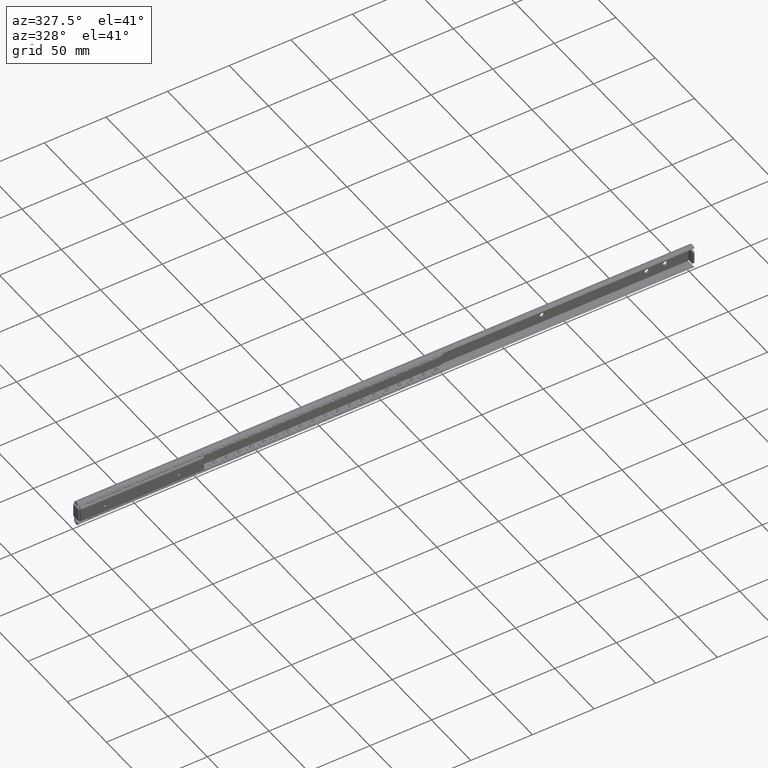
[diagram: clean part render]
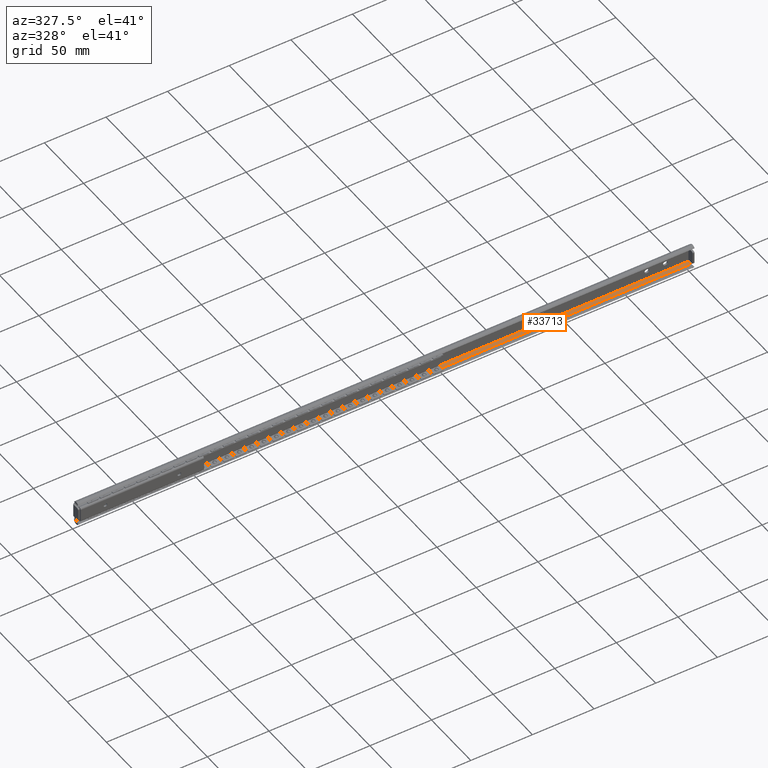
[diagram: same view with one face highlighted and labeled with its STEP entity id]
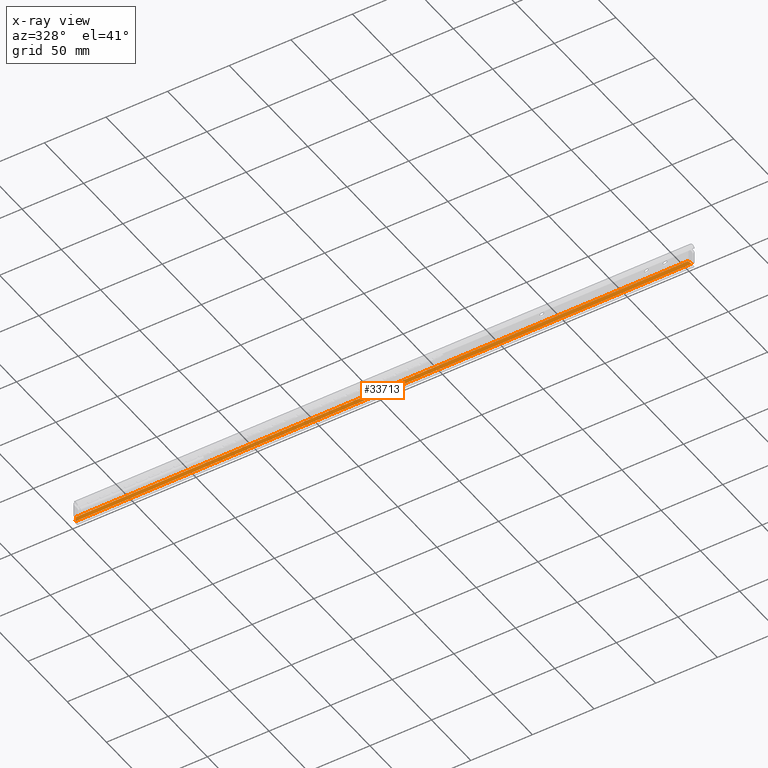
[diagram: x-ray of the same camera — body ghosted, the highlighted face saturated]
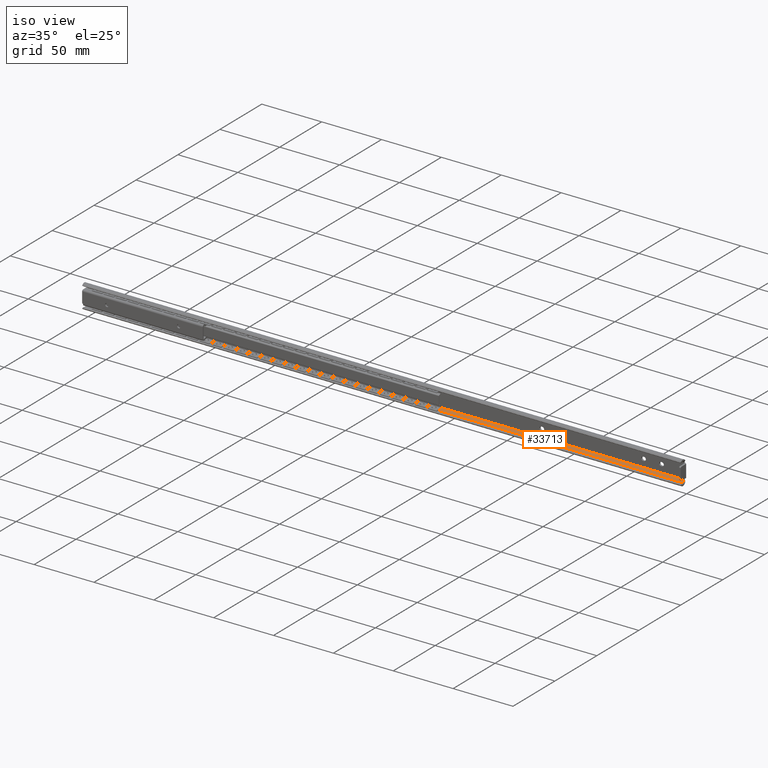
[diagram: same view with one face highlighted and labeled with its STEP entity id]
A machine part, auxiliary view. The second image highlights one B-rep face of the part: STEP entity #33713.
The next image is the same camera in x-ray: the body ghosted, the highlighted face saturated — about 0% of this face is hidden behind the body in this view.
A second angle (iso view) of the same face is appended — the face is thin or edge-on in the first view.
In plain terms, the highlighted face is a freeform B-spline surface patch.
Its self-contained STEP definition (entity closure, byte-faithful):
#32422=CARTESIAN_POINT('',(498.692893000000030,-2.161378739668635,-7.007107000000000));
#32423=VERTEX_POINT('',#32422);
#32429=CARTESIAN_POINT('',(499.707107000000010,-3.253435910361090,-8.021319999999999));
#32430=VERTEX_POINT('',#32429);
#32431=CARTESIAN_POINT('',(499.707107000000010,-3.253435910361090,-8.021319999999999));
#32432=CARTESIAN_POINT('',(498.692893000000030,-2.161378739668635,-7.007107000000000));
#32433=QUASI_UNIFORM_CURVE('',1,(#32431,#32432),.UNSPECIFIED.,.F.,.U.);
#32434=EDGE_CURVE('',#32430,#32423,#32433,.T.);
#32466=CARTESIAN_POINT('',(499.833379019755000,-3.419692415967285,-8.175724730600940));
#32467=VERTEX_POINT('',#32466);
#32468=CARTESIAN_POINT('',(499.833379019755000,-3.419692415967285,-8.175724730600940));
#32469=CARTESIAN_POINT('',(499.777981085427140,-3.329750332501765,-8.092194566917994));
#32470=CARTESIAN_POINT('',(499.707107000000010,-3.253435910361090,-8.021319999999999));
#32478=(BOUNDED_CURVE()B_SPLINE_CURVE(2,(#32468,#32469,#32470),.UNSPECIFIED.,.F.,.U.)CURVE()GEOMETRIC_REPRESENTATION_ITEM()QUASI_UNIFORM_CURVE()RATIONAL_B_SPLINE_CURVE((1.0,0.995014394697268,1.0))REPRESENTATION_ITEM(''));
#32479=EDGE_CURVE('',#32467,#32430,#32478,.T.);
#32669=CARTESIAN_POINT('',(498.411066295917010,-1.559745300733950,-6.448358676184340));
#32670=VERTEX_POINT('',#32669);
#32684=CARTESIAN_POINT('',(498.411066295917010,-1.559745300733950,-6.448358676184340));
#32685=CARTESIAN_POINT('',(498.459941880377240,-1.910547672656901,-6.774155707893746));
#32686=CARTESIAN_POINT('',(498.692893000000030,-2.161378739667843,-7.007106999999591));
#32694=(BOUNDED_CURVE()B_SPLINE_CURVE(2,(#32684,#32685,#32686),.UNSPECIFIED.,.F.,.U.)CURVE()GEOMETRIC_REPRESENTATION_ITEM()QUASI_UNIFORM_CURVE()RATIONAL_B_SPLINE_CURVE((1.0,0.949786060121423,1.0))REPRESENTATION_ITEM(''));
#32695=EDGE_CURVE('',#32670,#32423,#32694,.T.);
#33374=CARTESIAN_POINT('',(0.292892999999993,-3.253435910361090,-8.021319999999999));
#33375=VERTEX_POINT('',#33374);
#33381=CARTESIAN_POINT('',(1.307106999999946,-2.161378739668320,-7.007107000000000));
#33382=VERTEX_POINT('',#33381);
#33383=CARTESIAN_POINT('',(1.307106999999946,-2.161378739668320,-7.007107000000000));
#33384=CARTESIAN_POINT('',(0.292892999999993,-3.253435910361090,-8.021319999999999));
#33385=QUASI_UNIFORM_CURVE('',1,(#33383,#33384),.UNSPECIFIED.,.F.,.U.);
#33386=EDGE_CURVE('',#33382,#33375,#33385,.T.);
#33457=CARTESIAN_POINT('',(1.588933704083245,-1.559745300733950,-6.448358676184340));
#33458=VERTEX_POINT('',#33457);
#33459=CARTESIAN_POINT('',(1.307106999999946,-2.161378739668320,-7.007107000000000));
#33460=CARTESIAN_POINT('',(1.540057991290967,-1.910547810839261,-6.774155836226173));
#33461=CARTESIAN_POINT('',(1.588933704083245,-1.559745300733950,-6.448358676184340));
#33469=(BOUNDED_CURVE()B_SPLINE_CURVE(2,(#33459,#33460,#33461),.UNSPECIFIED.,.F.,.U.)CURVE()GEOMETRIC_REPRESENTATION_ITEM()QUASI_UNIFORM_CURVE()RATIONAL_B_SPLINE_CURVE((1.0,0.949786111349295,1.0))REPRESENTATION_ITEM(''));
#33470=EDGE_CURVE('',#33382,#33458,#33469,.T.);
#33571=CARTESIAN_POINT('',(0.166620980244670,-3.419692415967285,-8.175724730600940));
#33572=VERTEX_POINT('',#33571);
#33606=CARTESIAN_POINT('',(0.292892999999993,-3.253435910361090,-8.021319999999999));
#33607=CARTESIAN_POINT('',(0.222019087324127,-3.329750052030010,-8.092194306438865));
#33608=CARTESIAN_POINT('',(0.166620980244670,-3.419692415967285,-8.175724730600940));
#33616=(BOUNDED_CURVE()B_SPLINE_CURVE(2,(#33606,#33607,#33608),.UNSPECIFIED.,.F.,.U.)CURVE()GEOMETRIC_REPRESENTATION_ITEM()QUASI_UNIFORM_CURVE()RATIONAL_B_SPLINE_CURVE((1.0,0.995014363835470,1.0))REPRESENTATION_ITEM(''));
#33617=EDGE_CURVE('',#33375,#33572,#33616,.T.);
#33686=CARTESIAN_POINT('',(498.411066295917010,-1.559745300733950,-6.448358676184340));
#33687=CARTESIAN_POINT('',(1.588933704083245,-1.559745300733950,-6.448358676184340));
#33688=QUASI_UNIFORM_CURVE('',1,(#33686,#33687),.UNSPECIFIED.,.F.,.U.);
#33689=EDGE_CURVE('',#32670,#33458,#33688,.T.);
#33694=CARTESIAN_POINT('',(-24.791732615377811,-1.466840570024961,-6.362076996487044));
#33695=CARTESIAN_POINT('',(-24.791732615377811,-3.512596635383844,-8.262007194280020));
#33696=CARTESIAN_POINT('',(524.791746017484230,-1.466840570024961,-6.362076996487044));
#33697=CARTESIAN_POINT('',(524.791746017484230,-3.512596635383844,-8.262007194280020));
#33698=B_SPLINE_SURFACE_WITH_KNOTS('',1,1,((#33694,#33696),(#33695,#33697)),.UNSPECIFIED.,.F.,.F.,.U.,(2,2),(2,2),(0.0,2.791926330589387),(0.0,549.583478632862010),.UNSPECIFIED.);
#33699=ORIENTED_EDGE('',*,*,#32695,.F.);
#33700=ORIENTED_EDGE('',*,*,#33689,.T.);
#33701=ORIENTED_EDGE('',*,*,#33470,.F.);
#33702=ORIENTED_EDGE('',*,*,#33386,.T.);
#33703=ORIENTED_EDGE('',*,*,#33617,.T.);
#33704=CARTESIAN_POINT('',(499.833379019755000,-3.419692415967285,-8.175724730600940));
#33705=CARTESIAN_POINT('',(0.166620980244670,-3.419692415967285,-8.175724730600940));
#33706=QUASI_UNIFORM_CURVE('',1,(#33704,#33705),.UNSPECIFIED.,.F.,.U.);
#33707=EDGE_CURVE('',#32467,#33572,#33706,.T.);
#33708=ORIENTED_EDGE('',*,*,#33707,.F.);
#33709=ORIENTED_EDGE('',*,*,#32479,.T.);
#33710=ORIENTED_EDGE('',*,*,#32434,.T.);
#33711=EDGE_LOOP('',(#33699,#33700,#33701,#33702,#33703,#33708,#33709,#33710));
#33712=FACE_OUTER_BOUND('',#33711,.T.);
#33713=ADVANCED_FACE('',(#33712),#33698,.T.);